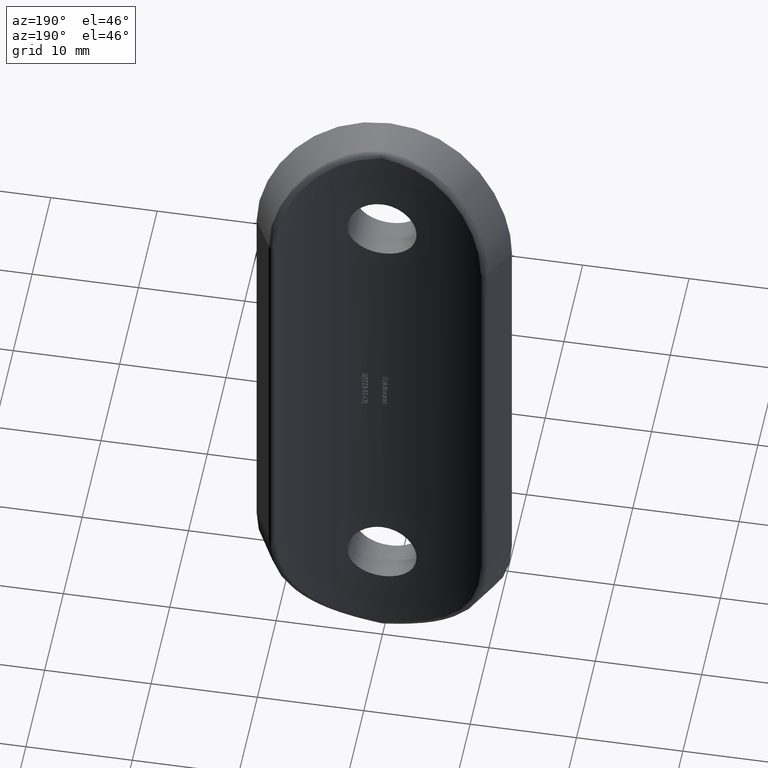
[diagram: clean part render]
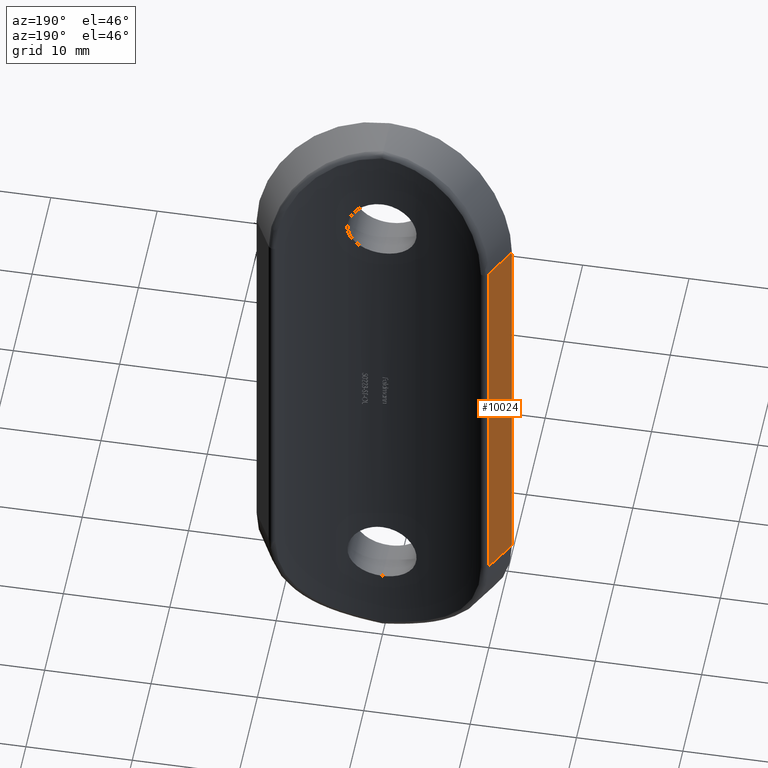
[diagram: same view with one face highlighted and labeled with its STEP entity id]
A machine part, auxiliary view. The second image highlights one B-rep face of the part: STEP entity #10024.
In plain terms, the highlighted planar face has unit normal (-0.8793, 0.4762, 0).
Its self-contained STEP definition (entity closure, byte-faithful):
#659 = LINE ( 'NONE', #4948, #4279 ) ;
#723 = EDGE_CURVE ( 'NONE', #7204, #3751, #11789, .T. ) ;
#891 = CARTESIAN_POINT ( 'NONE',  ( -10.33058993646414000, 2.123341184457219600, -19.50000000000000000 ) ) ;
#1446 = DIRECTION ( 'NONE',  ( 0.4761904761904761600, 0.8793421577437803300, -0.0000000000000000000 ) ) ;
#1463 = AXIS2_PLACEMENT_3D ( 'NONE', #4691, #1584, #2723 ) ;
#1535 = ORIENTED_EDGE ( 'NONE', *, *, #11960, .F. ) ;
#1584 = DIRECTION ( 'NONE',  ( -0.8793421577437804400, 0.4761904761904761600, 0.0000000000000000000 ) ) ;
#1596 = EDGE_CURVE ( 'NONE', #3751, #5333, #659, .T. ) ;
#2139 = CARTESIAN_POINT ( 'NONE',  ( -12.00000000000001100, -0.9594223751432616700, 31.50000000000000000 ) ) ;
#2177 = FACE_OUTER_BOUND ( 'NONE', #10762, .T. ) ;
#2223 = DIRECTION ( 'NONE',  ( -0.4761904761904761600, -0.8793421577437803300, -0.0000000000000000000 ) ) ;
#2723 = DIRECTION ( 'NONE',  ( -0.4761904761904761600, -0.8793421577437804400, 0.0000000000000000000 ) ) ;
#2737 = DIRECTION ( 'NONE',  ( 0.0000000000000000000, 0.0000000000000000000, -1.000000000000000000 ) ) ;
#3342 = VERTEX_POINT ( 'NONE', #8508 ) ;
#3751 = VERTEX_POINT ( 'NONE', #13248 ) ;
#4120 = ORIENTED_EDGE ( 'NONE', *, *, #6760, .T. ) ;
#4279 = VECTOR ( 'NONE', #2737, 1000.000000000000000 ) ;
#4691 = CARTESIAN_POINT ( 'NONE',  ( -11.99999999999999800, -0.9594223751432685600, 31.50000000000000000 ) ) ;
#4948 = CARTESIAN_POINT ( 'NONE',  ( -10.33058993646414000, 2.123341184457218800, 31.50000000000000000 ) ) ;
#5333 = VERTEX_POINT ( 'NONE', #891 ) ;
#5600 = ORIENTED_EDGE ( 'NONE', *, *, #723, .T. ) ;
#6018 = ORIENTED_EDGE ( 'NONE', *, *, #1596, .T. ) ;
#6760 = EDGE_CURVE ( 'NONE', #5333, #3342, #11904, .T. ) ;
#6930 = PLANE ( 'NONE',  #1463 ) ;
#7204 = VERTEX_POINT ( 'NONE', #13042 ) ;
#8508 = CARTESIAN_POINT ( 'NONE',  ( -12.00000000000001100, -0.9594223751432616700, -19.50000000000000400 ) ) ;
#10024 = ADVANCED_FACE ( 'NONE', ( #2177 ), #6930, .T. ) ;
#10695 = LINE ( 'NONE', #2139, #10865 ) ;
#10762 = EDGE_LOOP ( 'NONE', ( #5600, #6018, #4120, #1535 ) ) ;
#10865 = VECTOR ( 'NONE', #13991, 1000.000000000000000 ) ;
#11789 = LINE ( 'NONE', #13633, #13647 ) ;
#11904 = LINE ( 'NONE', #13165, #12756 ) ;
#11960 = EDGE_CURVE ( 'NONE', #7204, #3342, #10695, .T. ) ;
#12756 = VECTOR ( 'NONE', #2223, 1000.000000000000000 ) ;
#13042 = CARTESIAN_POINT ( 'NONE',  ( -12.00000000000001100, -0.9594223751432616700, 19.50000000000000000 ) ) ;
#13165 = CARTESIAN_POINT ( 'NONE',  ( -12.00000000000000400, -0.9594223751432773300, -19.50000000000000000 ) ) ;
#13248 = CARTESIAN_POINT ( 'NONE',  ( -10.33058993646414000, 2.123341184457220100, 19.50000000000000000 ) ) ;
#13633 = CARTESIAN_POINT ( 'NONE',  ( -11.99999999999999800, -0.9594223751432685600, 19.50000000000000000 ) ) ;
#13647 = VECTOR ( 'NONE', #1446, 1000.000000000000000 ) ;
#13991 = DIRECTION ( 'NONE',  ( -0.0000000000000000000, -0.0000000000000000000, -1.000000000000000000 ) ) ;